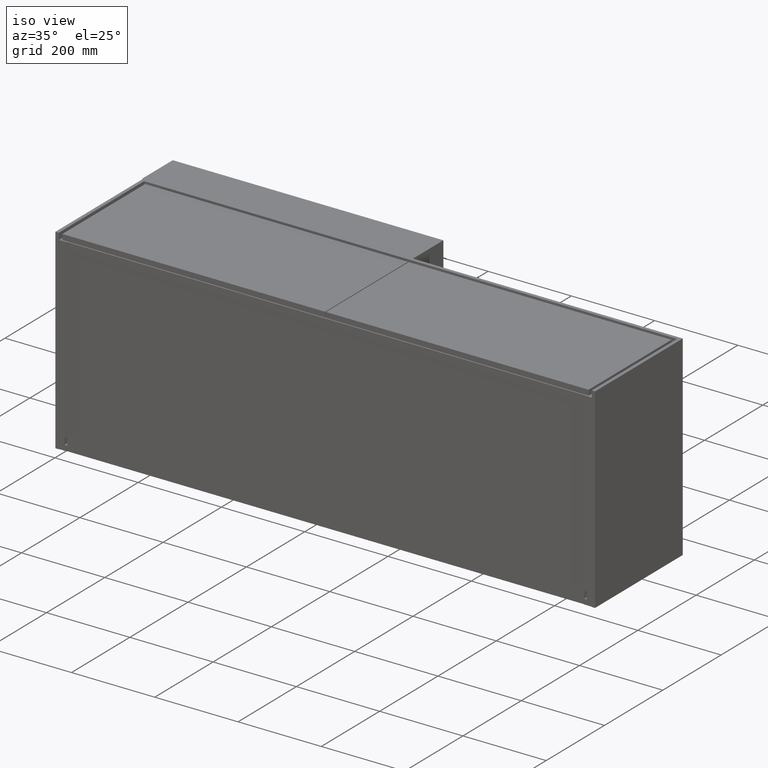
[diagram: clean part render]
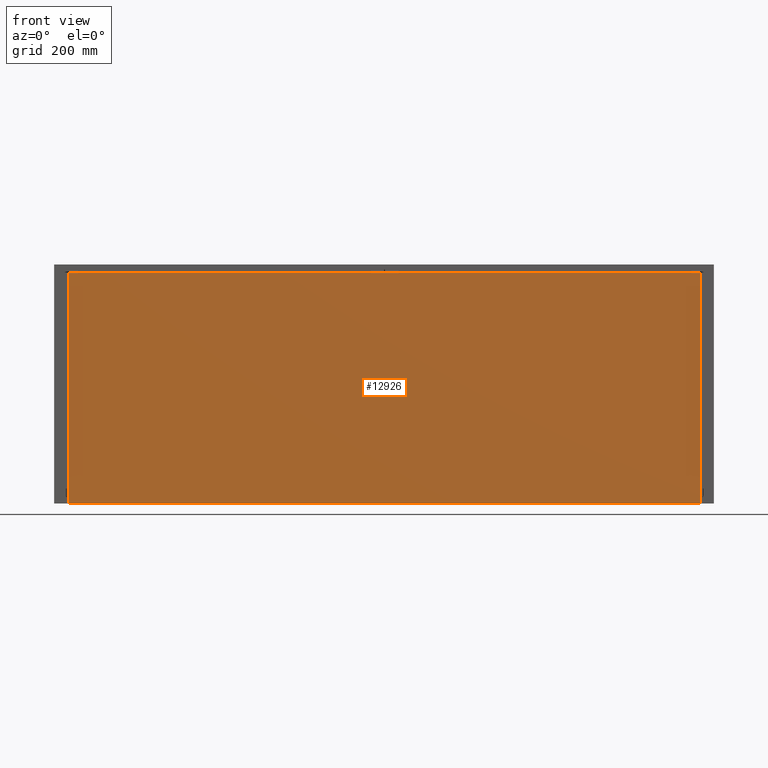
[diagram: tour spotlight — one face highlighted and labeled with its STEP entity id]
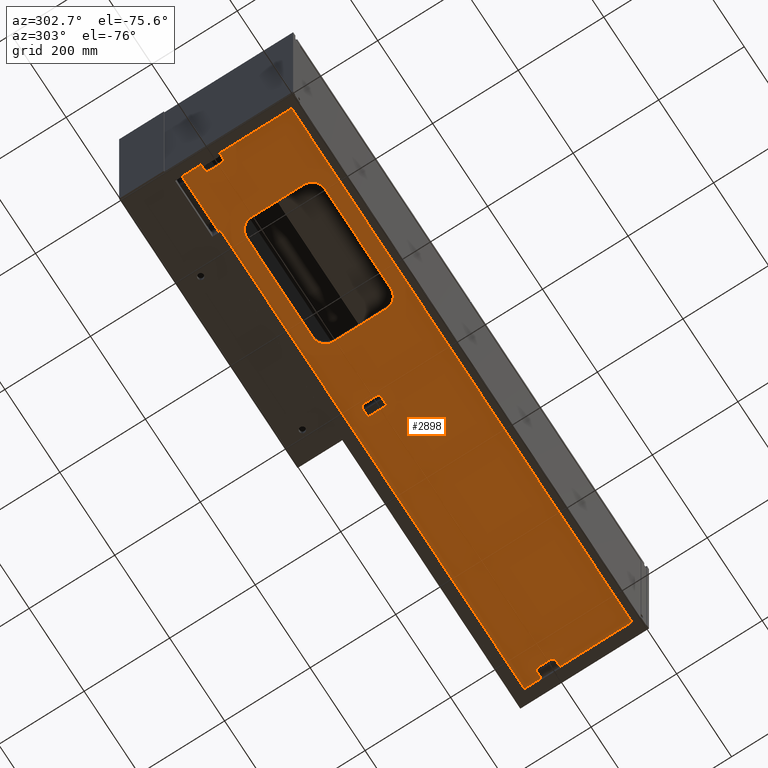
[diagram: tour spotlight — one face highlighted and labeled with its STEP entity id]
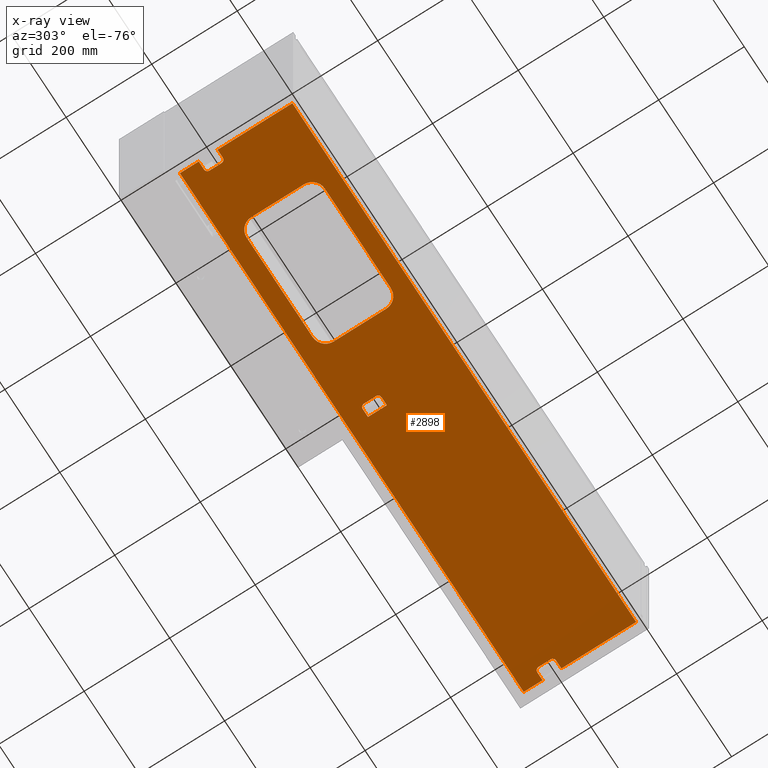
[diagram: x-ray of the same camera — body ghosted, this tour face saturated]
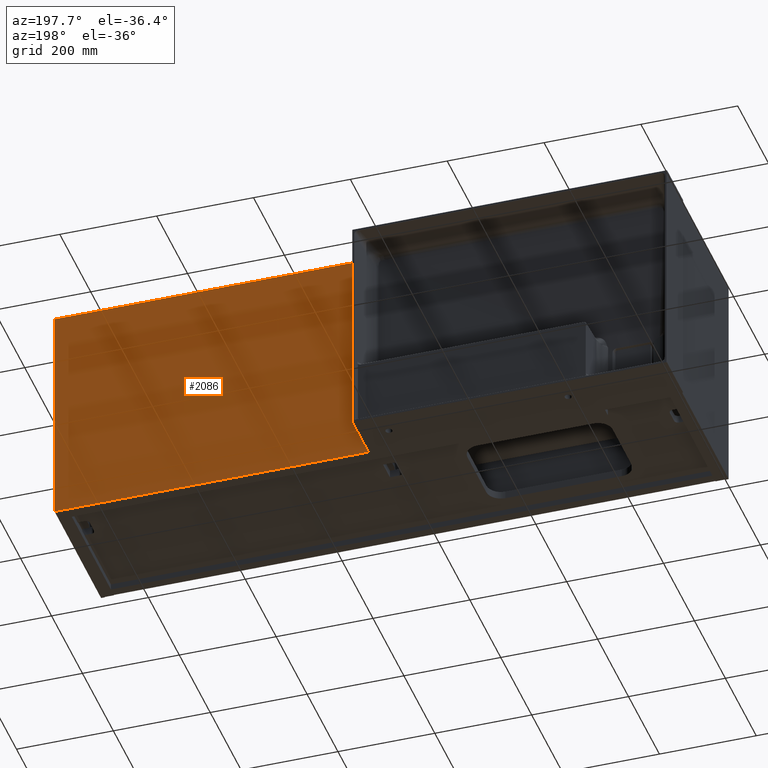
[diagram: tour spotlight — one face highlighted and labeled with its STEP entity id]
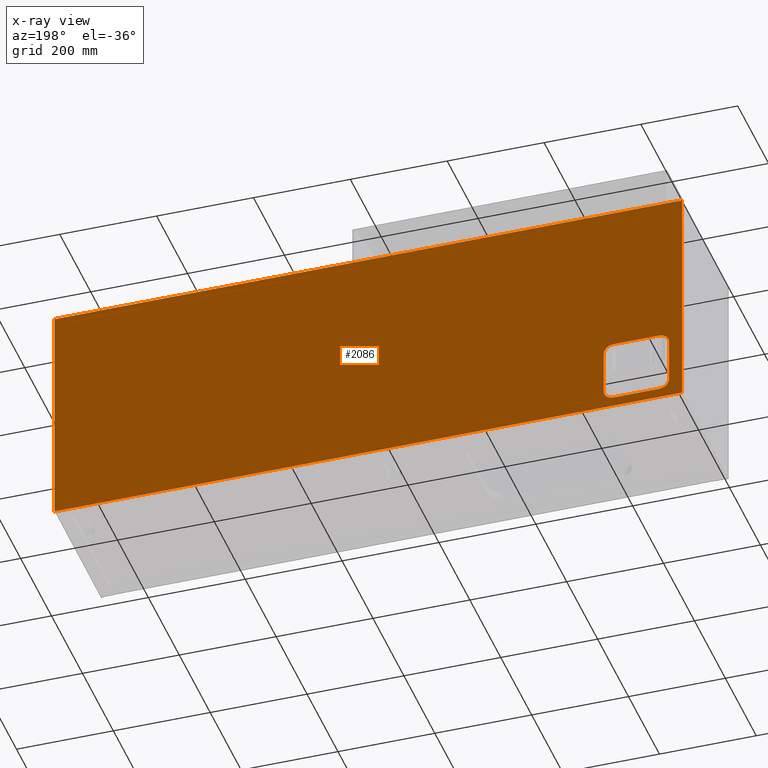
[diagram: x-ray of the same camera — body ghosted, this tour face saturated]
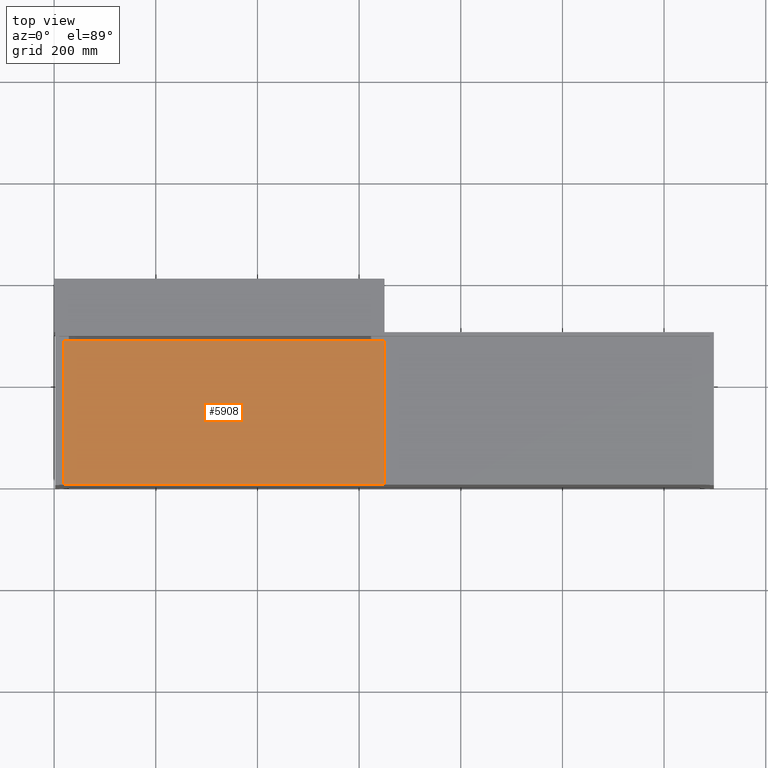
[diagram: tour spotlight — one face highlighted and labeled with its STEP entity id]
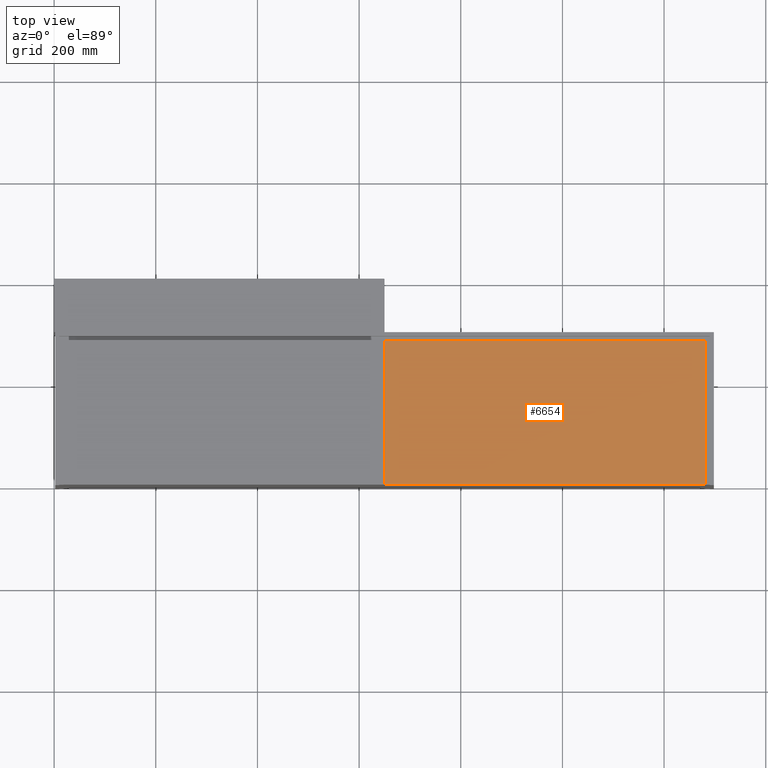
[diagram: tour spotlight — one face highlighted and labeled with its STEP entity id]
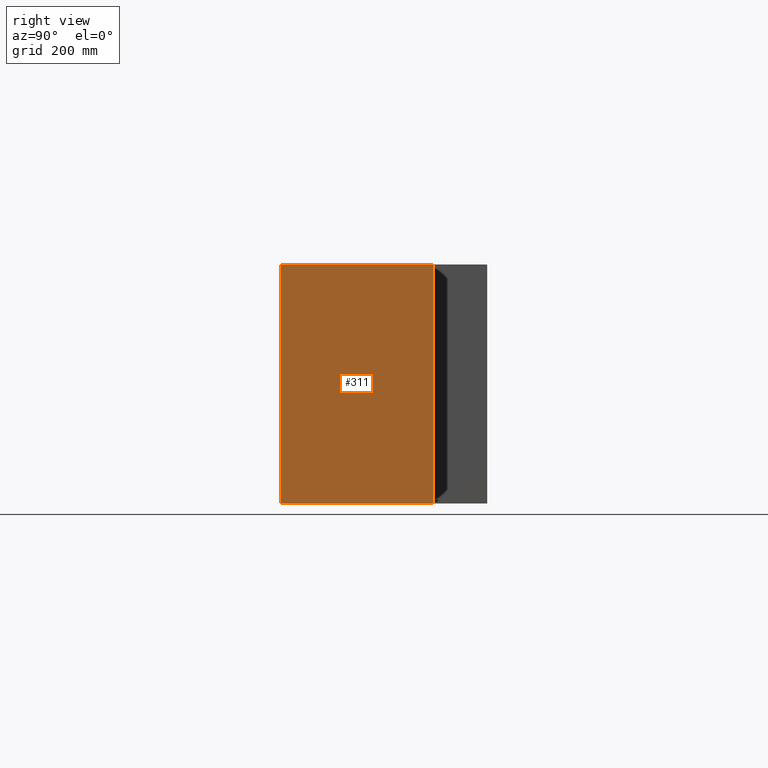
[diagram: tour spotlight — one face highlighted and labeled with its STEP entity id]
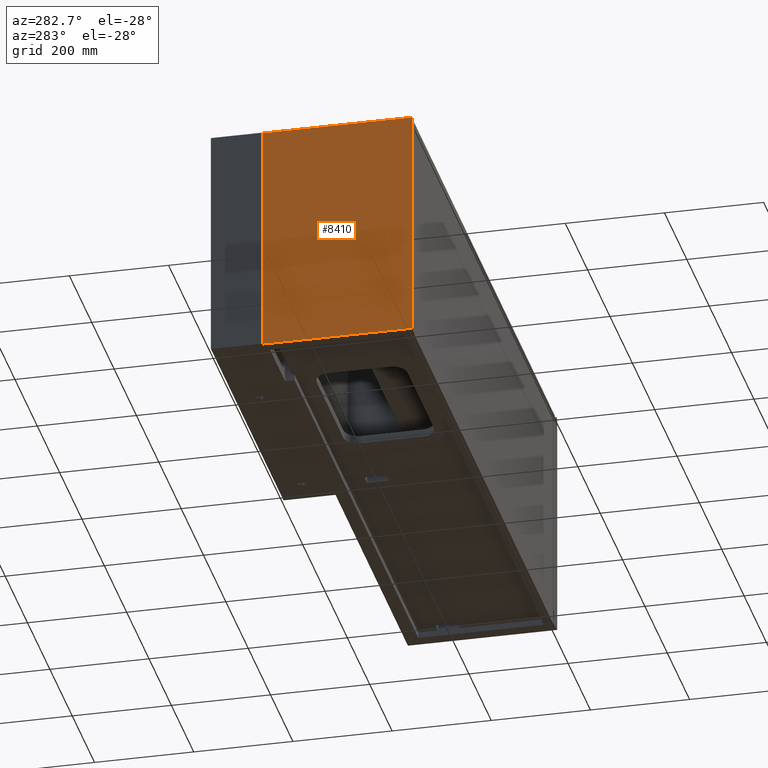
[diagram: tour spotlight — one face highlighted and labeled with its STEP entity id]
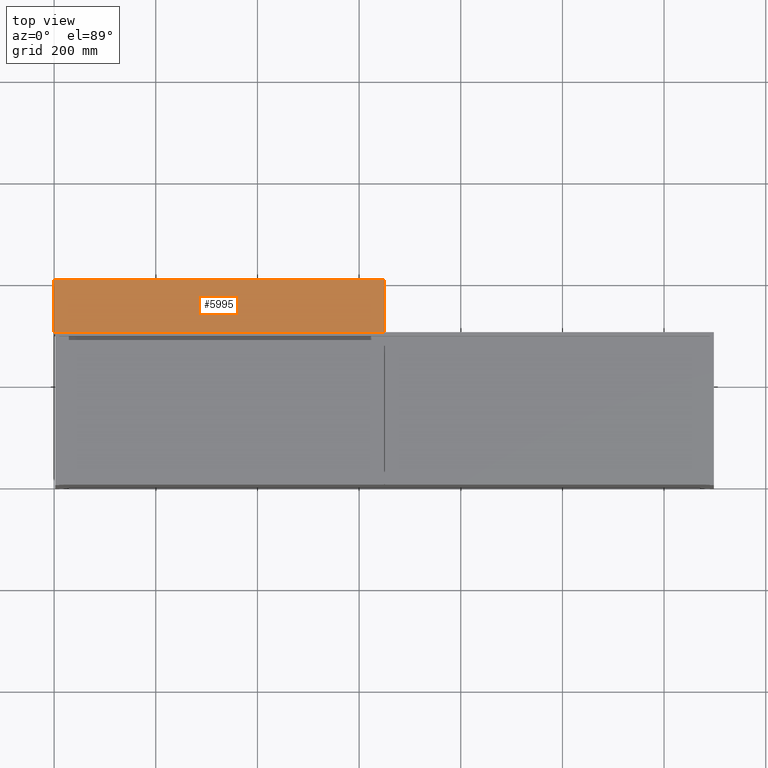
[diagram: tour spotlight — one face highlighted and labeled with its STEP entity id]
A machine part: a face-by-face anatomy tour. The part has 354 B-rep faces; the first image is the clean iso view, then the 8 largest visible faces are spotlighted one at a time (largest first), each with its STEP entity span.

Face 1 — front view, entity #12926. In plain terms, the highlighted planar face has unit normal (-0, 1, 0).
Definition (entity closure, byte-faithful):
#87 = LINE ( 'NONE', #5061, #14583 ) ;
#867 = CARTESIAN_POINT ( 'NONE',  ( 1271.000000000000455, 1.000000000000000000, -470.0000000000000000 ) ) ;
#874 = AXIS2_PLACEMENT_3D ( 'NONE', #1326, #6324, #11311 ) ;
#946 = LINE ( 'NONE', #5931, #4683 ) ;
#1326 = CARTESIAN_POINT ( 'NONE',  ( 0.0000000000000000000, 1.000000000000000000, 0.0000000000000000000 ) ) ;
#3457 = EDGE_CURVE ( 'NONE', #14538, #7035, #946, .T. ) ;
#3922 = DIRECTION ( 'NONE',  ( -0.0000000000000000000, -0.0000000000000000000, -1.000000000000000000 ) ) ;
#4104 = CARTESIAN_POINT ( 'NONE',  ( 28.99999999999999645, 1.000000000000000000, -16.00000000000000000 ) ) ;
#4683 = VECTOR ( 'NONE', #10915, 1000.000000000000000 ) ;
#4858 = CARTESIAN_POINT ( 'NONE',  ( 28.99999999999999645, 1.000000000000000000, -16.00000000000000000 ) ) ;
#5061 = CARTESIAN_POINT ( 'NONE',  ( 28.99999999999999645, 1.000000000000000000, -470.0000000000000000 ) ) ;
#5931 = CARTESIAN_POINT ( 'NONE',  ( 28.99999999999999645, 1.000000000000000000, -470.0000000000000000 ) ) ;
#6136 = EDGE_LOOP ( 'NONE', ( #7652, #13199, #13690, #15745 ) ) ;
#6324 = DIRECTION ( 'NONE',  ( -0.0000000000000000000, 1.000000000000000000, 0.0000000000000000000 ) ) ;
#6335 = EDGE_CURVE ( 'NONE', #7035, #13720, #87, .T. ) ;
#7035 = VERTEX_POINT ( 'NONE', #9374 ) ;
#7550 = FACE_OUTER_BOUND ( 'NONE', #6136, .T. ) ;
#7652 = ORIENTED_EDGE ( 'NONE', *, *, #6335, .F. ) ;
#7670 = VECTOR ( 'NONE', #9110, 1000.000000000000000 ) ;
#8630 = CARTESIAN_POINT ( 'NONE',  ( 1271.000000000000455, 1.000000000000000000, -16.00000000000001421 ) ) ;
#9110 = DIRECTION ( 'NONE',  ( 1.000000000000000000, 0.0000000000000000000, -1.117374219630793189E-17 ) ) ;
#9374 = CARTESIAN_POINT ( 'NONE',  ( 28.99999999999999645, 1.000000000000000000, -470.0000000000000000 ) ) ;
#10074 = DIRECTION ( 'NONE',  ( 0.0000000000000000000, 0.0000000000000000000, 1.000000000000000000 ) ) ;
#10152 = LINE ( 'NONE', #15104, #12347 ) ;
#10915 = DIRECTION ( 'NONE',  ( -1.000000000000000000, -0.0000000000000000000, -0.0000000000000000000 ) ) ;
#11022 = VERTEX_POINT ( 'NONE', #8630 ) ;
#11311 = DIRECTION ( 'NONE',  ( 0.0000000000000000000, -0.0000000000000000000, 1.000000000000000000 ) ) ;
#12321 = EDGE_CURVE ( 'NONE', #13720, #11022, #15288, .T. ) ;
#12347 = VECTOR ( 'NONE', #3922, 1000.000000000000000 ) ;
#12522 = PLANE ( 'NONE',  #874 ) ;
#12607 = EDGE_CURVE ( 'NONE', #11022, #14538, #10152, .T. ) ;
#12926 = ADVANCED_FACE ( 'NONE', ( #7550 ), #12522, .F. ) ;
#13199 = ORIENTED_EDGE ( 'NONE', *, *, #3457, .F. ) ;
#13690 = ORIENTED_EDGE ( 'NONE', *, *, #12607, .F. ) ;
#13720 = VERTEX_POINT ( 'NONE', #4858 ) ;
#14538 = VERTEX_POINT ( 'NONE', #867 ) ;
#14583 = VECTOR ( 'NONE', #10074, 1000.000000000000000 ) ;
#15104 = CARTESIAN_POINT ( 'NONE',  ( 1271.000000000000455, 1.000000000000000000, -470.0000000000000000 ) ) ;
#15288 = LINE ( 'NONE', #4104, #7670 ) ;
#15745 = ORIENTED_EDGE ( 'NONE', *, *, #12321, .F. ) ;

Face 2 — auxiliary view, entity #2898. An x-ray twin of the same camera follows (body ghosted, this face saturated) — the face is partly hidden behind the body. In plain terms, the highlighted planar face has unit normal (0, -0, 1).
Definition (entity closure, byte-faithful):
#7 = AXIS2_PLACEMENT_3D ( 'NONE', #10954, #15913, #4739 ) ;
#104 = CIRCLE ( 'NONE', #7141, 8.000000000000007105 ) ;
#196 = CARTESIAN_POINT ( 'NONE',  ( 1257.000000000000227, 234.0000000000000284, -456.5000000000005116 ) ) ;
#238 = EDGE_CURVE ( 'NONE', #11706, #16104, #6420, .T. ) ;
#291 = CARTESIAN_POINT ( 'NONE',  ( 1257.000000000000227, 198.0000000000000568, -456.5000000000005116 ) ) ;
#325 = VECTOR ( 'NONE', #11590, 1000.000000000000000 ) ;
#333 = EDGE_LOOP ( 'NONE', ( #1672, #1506, #7737, #13928, #14830, #2371 ) ) ;
#338 = VERTEX_POINT ( 'NONE', #2305 ) ;
#363 = VECTOR ( 'NONE', #4538, 1000.000000000000000 ) ;
#488 = VERTEX_POINT ( 'NONE', #7739 ) ;
#610 = DIRECTION ( 'NONE',  ( 0.0000000000000000000, -1.000000000000000000, 0.0000000000000000000 ) ) ;
#694 = DIRECTION ( 'NONE',  ( -1.000000000000000000, -0.0000000000000000000, 4.433798021665959670E-17 ) ) ;
#981 = FACE_OUTER_BOUND ( 'NONE', #16069, .T. ) ;
#1230 = CARTESIAN_POINT ( 'NONE',  ( 621.5000000000001137, 234.0000000000000000, -456.5000000000003979 ) ) ;
#1251 = EDGE_CURVE ( 'NONE', #11913, #7873, #16133, .T. ) ;
#1402 = VERTEX_POINT ( 'NONE', #15254 ) ;
#1461 = DIRECTION ( 'NONE',  ( -1.796477386124849124E-16, 0.0000000000000000000, -1.000000000000000000 ) ) ;
#1464 = CARTESIAN_POINT ( 'NONE',  ( 445.0000000000000568, 84.99999999999998579, -456.5000000000003411 ) ) ;
#1506 = ORIENTED_EDGE ( 'NONE', *, *, #3903, .F. ) ;
#1557 = CARTESIAN_POINT ( 'NONE',  ( 23.99999999999998934, 190.0000000000000568, -456.5000000000002842 ) ) ;
#1664 = CIRCLE ( 'NONE', #10805, 30.00000000000002842 ) ;
#1672 = ORIENTED_EDGE ( 'NONE', *, *, #11312, .F. ) ;
#1854 = EDGE_CURVE ( 'NONE', #4098, #15232, #14228, .T. ) ;
#1903 = CIRCLE ( 'NONE', #11051, 8.000000000000007105 ) ;
#1905 = LINE ( 'NONE', #6913, #14872 ) ;
#1942 = CIRCLE ( 'NONE', #11095, 8.000000000000014211 ) ;
#1970 = DIRECTION ( 'NONE',  ( -1.000000000000000000, 0.0000000000000000000, 0.0000000000000000000 ) ) ;
#2017 = CARTESIAN_POINT ( 'NONE',  ( 445.0000000000000568, 238.0000000000000000, -456.5000000000003411 ) ) ;
#2203 = EDGE_CURVE ( 'NONE', #7786, #14120, #4623, .T. ) ;
#2225 = EDGE_CURVE ( 'NONE', #4109, #7873, #4702, .T. ) ;
#2255 = CARTESIAN_POINT ( 'NONE',  ( 23.99999999999998934, 190.0000000000000568, -456.5000000000002842 ) ) ;
#2266 = LINE ( 'NONE', #7275, #3913 ) ;
#2279 = CARTESIAN_POINT ( 'NONE',  ( 205.0000000000000000, 55.00000000000002132, -456.5000000000003411 ) ) ;
#2305 = CARTESIAN_POINT ( 'NONE',  ( 42.99999999999990763, 190.0000000000000568, -456.5000000000002842 ) ) ;
#2371 = ORIENTED_EDGE ( 'NONE', *, *, #6428, .F. ) ;
#2374 = VERTEX_POINT ( 'NONE', #6277 ) ;
#2384 = CARTESIAN_POINT ( 'NONE',  ( 1257.000000000000227, 226.0000000000000284, -456.5000000000005116 ) ) ;
#2403 = VECTOR ( 'NONE', #694, 1000.000000000000000 ) ;
#2421 = LINE ( 'NONE', #7431, #9806 ) ;
#2431 = CARTESIAN_POINT ( 'NONE',  ( 1276.000000000000227, 234.0000000000000284, -456.5000000000005116 ) ) ;
#2478 = ORIENTED_EDGE ( 'NONE', *, *, #2225, .F. ) ;
#2623 = CARTESIAN_POINT ( 'NONE',  ( 1276.000000000000227, 15.00000000000000000, -456.5000000000003411 ) ) ;
#2652 = EDGE_CURVE ( 'NONE', #488, #4098, #104, .T. ) ;
#2759 = DIRECTION ( 'NONE',  ( -1.796477386124849124E-16, 0.0000000000000000000, -1.000000000000000000 ) ) ;
#2828 = LINE ( 'NONE', #6608, #325 ) ;
#2898 = ADVANCED_FACE ( 'NONE', ( #7200, #12167, #981 ), #5966, .F. ) ;
#2919 = EDGE_CURVE ( 'NONE', #15747, #9216, #2266, .T. ) ;
#2929 = ORIENTED_EDGE ( 'NONE', *, *, #11031, .F. ) ;
#2932 = ORIENTED_EDGE ( 'NONE', *, *, #12299, .F. ) ;
#2948 = ORIENTED_EDGE ( 'NONE', *, *, #10906, .F. ) ;
#3037 = ORIENTED_EDGE ( 'NONE', *, *, #12702, .F. ) ;
#3039 = CARTESIAN_POINT ( 'NONE',  ( 1249.000000000000227, 226.0000000000000284, -456.5000000000005116 ) ) ;
#3268 = LINE ( 'NONE', #8270, #10222 ) ;
#3308 = DIRECTION ( 'NONE',  ( -4.956352788505169184E-16, -1.000000000000000000, 0.0000000000000000000 ) ) ;
#3412 = CARTESIAN_POINT ( 'NONE',  ( 175.0000000000000568, 208.0000000000000568, -456.5000000000003411 ) ) ;
#3620 = CARTESIAN_POINT ( 'NONE',  ( 445.0000000000000568, 54.99999999999999289, -456.5000000000003411 ) ) ;
#3627 = DIRECTION ( 'NONE',  ( -1.000000000000000000, 0.0000000000000000000, 0.0000000000000000000 ) ) ;
#3678 = DIRECTION ( 'NONE',  ( -1.796477386124849124E-16, 0.0000000000000000000, -1.000000000000000000 ) ) ;
#3747 = VECTOR ( 'NONE', #14087, 1000.000000000000000 ) ;
#3789 = CARTESIAN_POINT ( 'NONE',  ( 1249.000000000000227, 226.0000000000000284, -456.5000000000005116 ) ) ;
#3903 = EDGE_CURVE ( 'NONE', #9216, #4663, #6832, .T. ) ;
#3913 = VECTOR ( 'NONE', #12241, 1000.000000000000000 ) ;
#4098 = VERTEX_POINT ( 'NONE', #13826 ) ;
#4109 = VERTEX_POINT ( 'NONE', #196 ) ;
#4133 = LINE ( 'NONE', #9136, #3747 ) ;
#4242 = CARTESIAN_POINT ( 'NONE',  ( 613.5000000000001137, 198.0000000000000000, -456.5000000000003979 ) ) ;
#4302 = DIRECTION ( 'NONE',  ( 4.513101726118521929E-16, -1.000000000000000000, 0.0000000000000000000 ) ) ;
#4538 = DIRECTION ( 'NONE',  ( -0.0000000000000000000, -1.000000000000000000, -0.0000000000000000000 ) ) ;
#4621 = CARTESIAN_POINT ( 'NONE',  ( 621.5000000000001137, 225.9999999999999716, -456.5000000000003979 ) ) ;
#4623 = LINE ( 'NONE', #8398, #6107 ) ;
#4663 = VERTEX_POINT ( 'NONE', #5367 ) ;
#4702 = LINE ( 'NONE', #9716, #11074 ) ;
#4739 = DIRECTION ( 'NONE',  ( 1.000000000000000000, 0.0000000000000000000, -4.433798021665959670E-17 ) ) ;
#4816 = EDGE_CURVE ( 'NONE', #2374, #11706, #1905, .T. ) ;
#4827 = ORIENTED_EDGE ( 'NONE', *, *, #10957, .T. ) ;
#4960 = CARTESIAN_POINT ( 'NONE',  ( 1276.000000000000227, 1531.102232247830216, -456.5000000000003411 ) ) ;
#5180 = LINE ( 'NONE', #10182, #14932 ) ;
#5248 = ORIENTED_EDGE ( 'NONE', *, *, #8324, .F. ) ;
#5267 = DIRECTION ( 'NONE',  ( -1.796477386124849124E-16, 0.0000000000000000000, -1.000000000000000000 ) ) ;
#5367 = CARTESIAN_POINT ( 'NONE',  ( 640.5000000000002274, 189.9999999999999432, -456.5000000000002842 ) ) ;
#5375 = CARTESIAN_POINT ( 'NONE',  ( 42.99999999999990763, 226.0000000000000284, -456.5000000000002842 ) ) ;
#5574 = VECTOR ( 'NONE', #6566, 1000.000000000000000 ) ;
#5651 = CARTESIAN_POINT ( 'NONE',  ( 174.9999999999999716, 84.99999999999997158, -456.5000000000002842 ) ) ;
#5742 = VECTOR ( 'NONE', #610, 1000.000000000000000 ) ;
#5743 = CARTESIAN_POINT ( 'NONE',  ( 205.0000000000000568, 208.0000000000000568, -456.5000000000003411 ) ) ;
#5855 = LINE ( 'NONE', #10840, #15980 ) ;
#5866 = VERTEX_POINT ( 'NONE', #2623 ) ;
#5966 = PLANE ( 'NONE',  #7 ) ;
#6033 = AXIS2_PLACEMENT_3D ( 'NONE', #5743, #10730, #15693 ) ;
#6107 = VECTOR ( 'NONE', #13358, 1000.000000000000000 ) ;
#6118 = VERTEX_POINT ( 'NONE', #8345 ) ;
#6277 = CARTESIAN_POINT ( 'NONE',  ( 23.99999999999999645, 234.0000000000000000, -456.5000000000002842 ) ) ;
#6420 = CIRCLE ( 'NONE', #13436, 8.000000000000007105 ) ;
#6428 = EDGE_CURVE ( 'NONE', #6935, #15798, #15881, .T. ) ;
#6464 = DIRECTION ( 'NONE',  ( -1.000000000000000000, 0.0000000000000000000, 0.0000000000000000000 ) ) ;
#6467 = DIRECTION ( 'NONE',  ( -1.796477386124849124E-16, 0.0000000000000000000, -1.000000000000000000 ) ) ;
#6566 = DIRECTION ( 'NONE',  ( -1.000000000000000000, 1.460819769243633442E-15, -0.0000000000000000000 ) ) ;
#6608 = CARTESIAN_POINT ( 'NONE',  ( 23.99999999999999645, 278.0000000000000000, -456.5000000000002842 ) ) ;
#6664 = AXIS2_PLACEMENT_3D ( 'NONE', #9874, #14819, #3627 ) ;
#6760 = LINE ( 'NONE', #15477, #14406 ) ;
#6832 = LINE ( 'NONE', #11805, #5742 ) ;
#6913 = CARTESIAN_POINT ( 'NONE',  ( 23.99999999999999645, 234.0000000000000284, -456.5000000000002842 ) ) ;
#6918 = LINE ( 'NONE', #11887, #2403 ) ;
#6935 = VERTEX_POINT ( 'NONE', #10424 ) ;
#7141 = AXIS2_PLACEMENT_3D ( 'NONE', #291, #5267, #10275 ) ;
#7200 = FACE_BOUND ( 'NONE', #333, .T. ) ;
#7275 = CARTESIAN_POINT ( 'NONE',  ( 640.5000000000002274, 234.0000000000000000, -456.5000000000003979 ) ) ;
#7295 = VERTEX_POINT ( 'NONE', #9836 ) ;
#7431 = CARTESIAN_POINT ( 'NONE',  ( 23.99999999999999645, 1531.102232247830216, -456.5000000000002842 ) ) ;
#7440 = CARTESIAN_POINT ( 'NONE',  ( 205.0000000000000568, 238.0000000000000568, -456.5000000000003411 ) ) ;
#7471 = VERTEX_POINT ( 'NONE', #2017 ) ;
#7722 = ORIENTED_EDGE ( 'NONE', *, *, #13738, .F. ) ;
#7737 = ORIENTED_EDGE ( 'NONE', *, *, #2919, .F. ) ;
#7739 = CARTESIAN_POINT ( 'NONE',  ( 1257.000000000000227, 190.0000000000000568, -456.5000000000005116 ) ) ;
#7768 = DIRECTION ( 'NONE',  ( 1.000000000000000000, 0.0000000000000000000, 0.0000000000000000000 ) ) ;
#7786 = VERTEX_POINT ( 'NONE', #5651 ) ;
#7809 = EDGE_CURVE ( 'NONE', #11171, #488, #3268, .T. ) ;
#7873 = VERTEX_POINT ( 'NONE', #2431 ) ;
#8050 = DIRECTION ( 'NONE',  ( -0.0000000000000000000, 1.000000000000000000, -0.0000000000000000000 ) ) ;
#8107 = ORIENTED_EDGE ( 'NONE', *, *, #13088, .F. ) ;
#8149 = EDGE_CURVE ( 'NONE', #8939, #8482, #14811, .T. ) ;
#8206 = LINE ( 'NONE', #13176, #9237 ) ;
#8270 = CARTESIAN_POINT ( 'NONE',  ( 1276.000000000000227, 190.0000000000000568, -456.5000000000005116 ) ) ;
#8324 = EDGE_CURVE ( 'NONE', #14120, #11378, #13072, .T. ) ;
#8336 = ORIENTED_EDGE ( 'NONE', *, *, #4816, .F. ) ;
#8345 = CARTESIAN_POINT ( 'NONE',  ( 23.99999999999999645, 278.0000000000000000, -456.5000000000002842 ) ) ;
#8398 = CARTESIAN_POINT ( 'NONE',  ( 175.0000000000000853, 208.0000000000000568, -456.5000000000003411 ) ) ;
#8482 = VERTEX_POINT ( 'NONE', #2279 ) ;
#8502 = EDGE_LOOP ( 'NONE', ( #14353, #16050, #11703, #8107, #2948, #7722, #8663, #5248 ) ) ;
#8631 = DIRECTION ( 'NONE',  ( -1.000000000000000000, 1.156482317317870985E-16, 0.0000000000000000000 ) ) ;
#8663 = ORIENTED_EDGE ( 'NONE', *, *, #11137, .F. ) ;
#8689 = DIRECTION ( 'NONE',  ( -1.000000000000000000, 0.0000000000000000000, 0.0000000000000000000 ) ) ;
#8700 = AXIS2_PLACEMENT_3D ( 'NONE', #2384, #11158, #16105 ) ;
#8718 = ORIENTED_EDGE ( 'NONE', *, *, #7809, .F. ) ;
#8900 = AXIS2_PLACEMENT_3D ( 'NONE', #12662, #1461, #6464 ) ;
#8939 = VERTEX_POINT ( 'NONE', #13463 ) ;
#8993 = CARTESIAN_POINT ( 'NONE',  ( 640.5000000000002274, 234.0000000000000000, -456.5000000000003979 ) ) ;
#9030 = VECTOR ( 'NONE', #9972, 1000.000000000000000 ) ;
#9037 = LINE ( 'NONE', #1557, #5574 ) ;
#9136 = CARTESIAN_POINT ( 'NONE',  ( 613.5000000000001137, 225.9999999999999716, -456.5000000000003979 ) ) ;
#9216 = VERTEX_POINT ( 'NONE', #8993 ) ;
#9237 = VECTOR ( 'NONE', #1970, 1000.000000000000000 ) ;
#9508 = VECTOR ( 'NONE', #3308, 1000.000000000000000 ) ;
#9515 = ORIENTED_EDGE ( 'NONE', *, *, #2652, .F. ) ;
#9551 = LINE ( 'NONE', #14490, #9508 ) ;
#9635 = DIRECTION ( 'NONE',  ( -1.796477386124849124E-16, 0.0000000000000000000, -1.000000000000000000 ) ) ;
#9716 = CARTESIAN_POINT ( 'NONE',  ( 1276.000000000000227, 234.0000000000000284, -456.5000000000005116 ) ) ;
#9806 = VECTOR ( 'NONE', #12402, 1000.000000000000000 ) ;
#9836 = CARTESIAN_POINT ( 'NONE',  ( 23.99999999999999645, 15.00000000000000000, -456.5000000000002842 ) ) ;
#9874 = CARTESIAN_POINT ( 'NONE',  ( 445.0000000000000568, 208.0000000000000284, -456.5000000000003411 ) ) ;
#9972 = DIRECTION ( 'NONE',  ( -0.0000000000000000000, -1.000000000000000000, -0.0000000000000000000 ) ) ;
#10053 = EDGE_CURVE ( 'NONE', #11913, #6118, #2828, .T. ) ;
#10060 = VECTOR ( 'NONE', #8050, 1000.000000000000000 ) ;
#10182 = CARTESIAN_POINT ( 'NONE',  ( 445.0000000000000568, 238.0000000000000284, -456.5000000000003411 ) ) ;
#10222 = VECTOR ( 'NONE', #13232, 1000.000000000000000 ) ;
#10275 = DIRECTION ( 'NONE',  ( -1.000000000000000000, 0.0000000000000000000, 0.0000000000000000000 ) ) ;
#10375 = DIRECTION ( 'NONE',  ( -1.796477386124849124E-16, 0.0000000000000000000, -1.000000000000000000 ) ) ;
#10424 = CARTESIAN_POINT ( 'NONE',  ( 621.5000000000001137, 190.0000000000000000, -456.5000000000003979 ) ) ;
#10563 = CIRCLE ( 'NONE', #12628, 30.00000000000002842 ) ;
#10730 = DIRECTION ( 'NONE',  ( -1.796477386124849124E-16, 0.0000000000000000000, -1.000000000000000000 ) ) ;
#10752 = LINE ( 'NONE', #15716, #363 ) ;
#10805 = AXIS2_PLACEMENT_3D ( 'NONE', #14866, #3678, #8689 ) ;
#10840 = CARTESIAN_POINT ( 'NONE',  ( 23.99999999999999645, 1531.102232247830216, -456.5000000000002842 ) ) ;
#10906 = EDGE_CURVE ( 'NONE', #11394, #11210, #6760, .T. ) ;
#10954 = CARTESIAN_POINT ( 'NONE',  ( 23.99999999999999645, 1531.102232247830216, -456.5000000000002842 ) ) ;
#10957 = EDGE_CURVE ( 'NONE', #5866, #7295, #6918, .T. ) ;
#11031 = EDGE_CURVE ( 'NONE', #15232, #4109, #15708, .T. ) ;
#11051 = AXIS2_PLACEMENT_3D ( 'NONE', #4621, #9635, #14571 ) ;
#11074 = VECTOR ( 'NONE', #14657, 1000.000000000000000 ) ;
#11095 = AXIS2_PLACEMENT_3D ( 'NONE', #13954, #2759, #7768 ) ;
#11137 = EDGE_CURVE ( 'NONE', #11378, #7471, #5180, .T. ) ;
#11158 = DIRECTION ( 'NONE',  ( -1.796477386124849124E-16, 0.0000000000000000000, -1.000000000000000000 ) ) ;
#11171 = VERTEX_POINT ( 'NONE', #15219 ) ;
#11210 = VERTEX_POINT ( 'NONE', #11563 ) ;
#11312 = EDGE_CURVE ( 'NONE', #4663, #6935, #8206, .T. ) ;
#11378 = VERTEX_POINT ( 'NONE', #7440 ) ;
#11394 = VERTEX_POINT ( 'NONE', #12411 ) ;
#11452 = DIRECTION ( 'NONE',  ( 1.000000000000000000, 0.0000000000000000000, 0.0000000000000000000 ) ) ;
#11563 = CARTESIAN_POINT ( 'NONE',  ( 475.0000000000001137, 84.99999999999998579, -456.5000000000003411 ) ) ;
#11590 = DIRECTION ( 'NONE',  ( -1.000000000000000000, 0.0000000000000000000, 4.433798021665959670E-17 ) ) ;
#11703 = ORIENTED_EDGE ( 'NONE', *, *, #8149, .F. ) ;
#11706 = VERTEX_POINT ( 'NONE', #15733 ) ;
#11805 = CARTESIAN_POINT ( 'NONE',  ( 640.5000000000002274, 234.0000000000000000, -456.5000000000003979 ) ) ;
#11884 = DIRECTION ( 'NONE',  ( 1.000000000000000000, 0.0000000000000000000, 0.0000000000000000000 ) ) ;
#11887 = CARTESIAN_POINT ( 'NONE',  ( 23.99999999999999645, 15.00000000000000000, -456.5000000000002842 ) ) ;
#11913 = VERTEX_POINT ( 'NONE', #11960 ) ;
#11960 = CARTESIAN_POINT ( 'NONE',  ( 1276.000000000000227, 278.0000000000000000, -456.5000000000003411 ) ) ;
#12134 = ORIENTED_EDGE ( 'NONE', *, *, #14291, .F. ) ;
#12146 = ORIENTED_EDGE ( 'NONE', *, *, #14213, .F. ) ;
#12167 = FACE_BOUND ( 'NONE', #8502, .T. ) ;
#12241 = DIRECTION ( 'NONE',  ( 1.000000000000000000, -0.0000000000000000000, -0.0000000000000000000 ) ) ;
#12299 = EDGE_CURVE ( 'NONE', #338, #15898, #9037, .T. ) ;
#12402 = DIRECTION ( 'NONE',  ( -0.0000000000000000000, -1.000000000000000000, -0.0000000000000000000 ) ) ;
#12411 = CARTESIAN_POINT ( 'NONE',  ( 475.0000000000000568, 208.0000000000000284, -456.5000000000003979 ) ) ;
#12628 = AXIS2_PLACEMENT_3D ( 'NONE', #1464, #6467, #11452 ) ;
#12653 = ORIENTED_EDGE ( 'NONE', *, *, #1854, .F. ) ;
#12662 = CARTESIAN_POINT ( 'NONE',  ( 621.5000000000001137, 198.0000000000000000, -456.5000000000003979 ) ) ;
#12694 = EDGE_CURVE ( 'NONE', #11171, #5866, #10752, .T. ) ;
#12702 = EDGE_CURVE ( 'NONE', #16104, #13907, #9551, .T. ) ;
#13012 = ORIENTED_EDGE ( 'NONE', *, *, #10053, .F. ) ;
#13072 = CIRCLE ( 'NONE', #6033, 30.00000000000000000 ) ;
#13088 = EDGE_CURVE ( 'NONE', #11210, #8939, #10563, .T. ) ;
#13176 = CARTESIAN_POINT ( 'NONE',  ( 640.5000000000002274, 190.0000000000000000, -456.5000000000003979 ) ) ;
#13232 = DIRECTION ( 'NONE',  ( -1.000000000000000000, 0.0000000000000000000, 0.0000000000000000000 ) ) ;
#13358 = DIRECTION ( 'NONE',  ( 9.026203452237043858E-16, 1.000000000000000000, -0.0000000000000000000 ) ) ;
#13436 = AXIS2_PLACEMENT_3D ( 'NONE', #5375, #10375, #15326 ) ;
#13463 = CARTESIAN_POINT ( 'NONE',  ( 445.0000000000000568, 54.99999999999999289, -456.5000000000003411 ) ) ;
#13678 = CIRCLE ( 'NONE', #6664, 29.99999999999997158 ) ;
#13738 = EDGE_CURVE ( 'NONE', #7471, #11394, #13678, .T. ) ;
#13826 = CARTESIAN_POINT ( 'NONE',  ( 1249.000000000000227, 198.0000000000000568, -456.5000000000005116 ) ) ;
#13907 = VERTEX_POINT ( 'NONE', #14003 ) ;
#13928 = ORIENTED_EDGE ( 'NONE', *, *, #14578, .F. ) ;
#13954 = CARTESIAN_POINT ( 'NONE',  ( 42.99999999999990763, 198.0000000000000568, -456.5000000000002842 ) ) ;
#14003 = CARTESIAN_POINT ( 'NONE',  ( 50.99999999999990052, 198.0000000000000568, -456.5000000000002842 ) ) ;
#14051 = ORIENTED_EDGE ( 'NONE', *, *, #12694, .T. ) ;
#14087 = DIRECTION ( 'NONE',  ( -0.0000000000000000000, 1.000000000000000000, -0.0000000000000000000 ) ) ;
#14120 = VERTEX_POINT ( 'NONE', #3412 ) ;
#14213 = EDGE_CURVE ( 'NONE', #6118, #2374, #2421, .T. ) ;
#14228 = LINE ( 'NONE', #3039, #10060 ) ;
#14291 = EDGE_CURVE ( 'NONE', #13907, #338, #1942, .T. ) ;
#14353 = ORIENTED_EDGE ( 'NONE', *, *, #2203, .F. ) ;
#14406 = VECTOR ( 'NONE', #4302, 1000.000000000000000 ) ;
#14490 = CARTESIAN_POINT ( 'NONE',  ( 50.99999999999991473, 226.0000000000000284, -456.5000000000002842 ) ) ;
#14561 = EDGE_CURVE ( 'NONE', #15898, #7295, #5855, .T. ) ;
#14571 = DIRECTION ( 'NONE',  ( 1.000000000000000000, 0.0000000000000000000, 0.0000000000000000000 ) ) ;
#14578 = EDGE_CURVE ( 'NONE', #1402, #15747, #1903, .T. ) ;
#14622 = VECTOR ( 'NONE', #8631, 1000.000000000000000 ) ;
#14657 = DIRECTION ( 'NONE',  ( 1.000000000000000000, -0.0000000000000000000, -0.0000000000000000000 ) ) ;
#14811 = LINE ( 'NONE', #3620, #14622 ) ;
#14819 = DIRECTION ( 'NONE',  ( -1.796477386124849124E-16, 0.0000000000000000000, -1.000000000000000000 ) ) ;
#14830 = ORIENTED_EDGE ( 'NONE', *, *, #14891, .F. ) ;
#14866 = CARTESIAN_POINT ( 'NONE',  ( 205.0000000000000284, 85.00000000000001421, -456.5000000000003411 ) ) ;
#14872 = VECTOR ( 'NONE', #11884, 1000.000000000000000 ) ;
#14890 = CARTESIAN_POINT ( 'NONE',  ( 50.99999999999991473, 226.0000000000000284, -456.5000000000002842 ) ) ;
#14891 = EDGE_CURVE ( 'NONE', #15798, #1402, #4133, .T. ) ;
#14932 = VECTOR ( 'NONE', #15141, 1000.000000000000000 ) ;
#15130 = ORIENTED_EDGE ( 'NONE', *, *, #1251, .T. ) ;
#15141 = DIRECTION ( 'NONE',  ( 1.000000000000000000, -1.156482317317871478E-16, -0.0000000000000000000 ) ) ;
#15219 = CARTESIAN_POINT ( 'NONE',  ( 1276.000000000000227, 190.0000000000001705, -456.5000000000003411 ) ) ;
#15232 = VERTEX_POINT ( 'NONE', #3789 ) ;
#15254 = CARTESIAN_POINT ( 'NONE',  ( 613.5000000000001137, 225.9999999999999716, -456.5000000000003979 ) ) ;
#15326 = DIRECTION ( 'NONE',  ( -1.000000000000000000, 0.0000000000000000000, 0.0000000000000000000 ) ) ;
#15444 = ORIENTED_EDGE ( 'NONE', *, *, #238, .F. ) ;
#15477 = CARTESIAN_POINT ( 'NONE',  ( 475.0000000000000568, 208.0000000000000284, -456.5000000000003979 ) ) ;
#15693 = DIRECTION ( 'NONE',  ( -1.000000000000000000, 0.0000000000000000000, 0.0000000000000000000 ) ) ;
#15708 = CIRCLE ( 'NONE', #8700, 8.000000000000007105 ) ;
#15709 = EDGE_CURVE ( 'NONE', #8482, #7786, #1664, .T. ) ;
#15716 = CARTESIAN_POINT ( 'NONE',  ( 1276.000000000000227, 1531.102232247830216, -456.5000000000003411 ) ) ;
#15733 = CARTESIAN_POINT ( 'NONE',  ( 42.99999999999990763, 234.0000000000000284, -456.5000000000002842 ) ) ;
#15747 = VERTEX_POINT ( 'NONE', #1230 ) ;
#15798 = VERTEX_POINT ( 'NONE', #4242 ) ;
#15807 = DIRECTION ( 'NONE',  ( -0.0000000000000000000, -1.000000000000000000, -0.0000000000000000000 ) ) ;
#15881 = CIRCLE ( 'NONE', #8900, 8.000000000000007105 ) ;
#15898 = VERTEX_POINT ( 'NONE', #2255 ) ;
#15913 = DIRECTION ( 'NONE',  ( 4.433798021665959670E-17, -0.0000000000000000000, 1.000000000000000000 ) ) ;
#15980 = VECTOR ( 'NONE', #15807, 1000.000000000000000 ) ;
#16028 = ORIENTED_EDGE ( 'NONE', *, *, #14561, .F. ) ;
#16050 = ORIENTED_EDGE ( 'NONE', *, *, #15709, .F. ) ;
#16069 = EDGE_LOOP ( 'NONE', ( #15130, #2478, #2929, #12653, #9515, #8718, #14051, #4827, #16028, #2932, #12134, #3037, #15444, #8336, #12146, #13012 ) ) ;
#16104 = VERTEX_POINT ( 'NONE', #14890 ) ;
#16105 = DIRECTION ( 'NONE',  ( 1.000000000000000000, 0.0000000000000000000, 0.0000000000000000000 ) ) ;
#16133 = LINE ( 'NONE', #4960, #9030 ) ;

Face 3 — auxiliary view, entity #2086. An x-ray twin of the same camera follows (body ghosted, this face saturated) — the face is partly hidden behind the body. In plain terms, the highlighted planar face has unit normal (0, 1, 0).
Definition (entity closure, byte-faithful):
#101 = VERTEX_POINT ( 'NONE', #1114 ) ;
#350 = AXIS2_PLACEMENT_3D ( 'NONE', #4068, #9073, #14019 ) ;
#402 = FACE_OUTER_BOUND ( 'NONE', #5437, .T. ) ;
#471 = DIRECTION ( 'NONE',  ( 0.0000000000000000000, 0.0000000000000000000, 1.000000000000000000 ) ) ;
#1114 = CARTESIAN_POINT ( 'NONE',  ( 2.000000000000053735, 300.0000000000000000, 0.0000000000000000000 ) ) ;
#1148 = ORIENTED_EDGE ( 'NONE', *, *, #11814, .F. ) ;
#1498 = CARTESIAN_POINT ( 'NONE',  ( 49.00000000000009948, 300.0000000000000000, -450.0000000000037517 ) ) ;
#1813 = VECTOR ( 'NONE', #13514, 1000.000000000000000 ) ;
#1827 = VERTEX_POINT ( 'NONE', #2789 ) ;
#2059 = AXIS2_PLACEMENT_3D ( 'NONE', #9587, #14523, #3340 ) ;
#2086 = ADVANCED_FACE ( 'NONE', ( #11596, #402 ), #5384, .T. ) ;
#2147 = CARTESIAN_POINT ( 'NONE',  ( 29.00000000000008171, 300.0000000000000000, -430.0000000000036948 ) ) ;
#2340 = VECTOR ( 'NONE', #15891, 1000.000000000000000 ) ;
#2386 = VECTOR ( 'NONE', #471, 1000.000000000000000 ) ;
#2452 = AXIS2_PLACEMENT_3D ( 'NONE', #10383, #15334, #4155 ) ;
#2684 = DIRECTION ( 'NONE',  ( 0.0000000000000000000, 0.0000000000000000000, 1.000000000000000000 ) ) ;
#2789 = CARTESIAN_POINT ( 'NONE',  ( 1298.000000000000227, 300.0000000000000000, -470.0000000000000000 ) ) ;
#3097 = ORIENTED_EDGE ( 'NONE', *, *, #10127, .T. ) ;
#3140 = CIRCLE ( 'NONE', #12255, 20.00000000000001776 ) ;
#3340 = DIRECTION ( 'NONE',  ( 0.0000000000000000000, 0.0000000000000000000, 1.000000000000000000 ) ) ;
#3468 = VECTOR ( 'NONE', #15203, 1000.000000000000000 ) ;
#3524 = VERTEX_POINT ( 'NONE', #14744 ) ;
#3527 = EDGE_CURVE ( 'NONE', #11493, #1827, #3557, .T. ) ;
#3545 = CARTESIAN_POINT ( 'NONE',  ( 164.0000000000001137, 300.0000000000000000, -430.0000000000036948 ) ) ;
#3557 = LINE ( 'NONE', #8558, #1813 ) ;
#3727 = CARTESIAN_POINT ( 'NONE',  ( 49.00000000000009948, 300.0000000000000000, -320.0000000000036380 ) ) ;
#3880 = ORIENTED_EDGE ( 'NONE', *, *, #4611, .F. ) ;
#4068 = CARTESIAN_POINT ( 'NONE',  ( 144.0000000000001137, 300.0000000000000000, -340.0000000000037517 ) ) ;
#4155 = DIRECTION ( 'NONE',  ( 0.0000000000000000000, -0.0000000000000000000, 1.000000000000000000 ) ) ;
#4260 = CARTESIAN_POINT ( 'NONE',  ( 49.00000000000009948, 300.0000000000000000, -320.0000000000037517 ) ) ;
#4468 = CARTESIAN_POINT ( 'NONE',  ( 144.0000000000001137, 300.0000000000000000, -430.0000000000036948 ) ) ;
#4611 = EDGE_CURVE ( 'NONE', #5726, #10737, #3140, .T. ) ;
#4863 = ORIENTED_EDGE ( 'NONE', *, *, #7742, .F. ) ;
#4893 = DIRECTION ( 'NONE',  ( -0.0000000000000000000, -0.0000000000000000000, -1.000000000000000000 ) ) ;
#5196 = CARTESIAN_POINT ( 'NONE',  ( 49.00000000000009948, 300.0000000000000000, -340.0000000000037517 ) ) ;
#5246 = LINE ( 'NONE', #10251, #3468 ) ;
#5318 = VECTOR ( 'NONE', #2684, 1000.000000000000000 ) ;
#5384 = PLANE ( 'NONE',  #2452 ) ;
#5437 = EDGE_LOOP ( 'NONE', ( #9519, #3097, #8004, #8432 ) ) ;
#5608 = EDGE_CURVE ( 'NONE', #7485, #3524, #12700, .T. ) ;
#5726 = VERTEX_POINT ( 'NONE', #12349 ) ;
#5948 = LINE ( 'NONE', #10933, #2340 ) ;
#6079 = CARTESIAN_POINT ( 'NONE',  ( 1298.000000000000227, 300.0000000000000000, 0.0000000000000000000 ) ) ;
#6117 = EDGE_CURVE ( 'NONE', #3524, #12732, #9154, .T. ) ;
#6287 = VECTOR ( 'NONE', #9269, 1000.000000000000000 ) ;
#6500 = DIRECTION ( 'NONE',  ( -1.000000000000000000, -0.0000000000000000000, -0.0000000000000000000 ) ) ;
#6565 = EDGE_LOOP ( 'NONE', ( #3880, #15841, #7781, #15906, #10646, #7002, #1148, #4863 ) ) ;
#6699 = LINE ( 'NONE', #11673, #2386 ) ;
#7002 = ORIENTED_EDGE ( 'NONE', *, *, #7314, .F. ) ;
#7017 = CARTESIAN_POINT ( 'NONE',  ( 144.0000000000001137, 300.0000000000000000, -450.0000000000037517 ) ) ;
#7314 = EDGE_CURVE ( 'NONE', #12373, #10992, #11126, .T. ) ;
#7393 = CIRCLE ( 'NONE', #350, 20.00000000000001776 ) ;
#7443 = CIRCLE ( 'NONE', #9546, 20.00000000000001776 ) ;
#7485 = VERTEX_POINT ( 'NONE', #7017 ) ;
#7555 = EDGE_CURVE ( 'NONE', #12732, #5726, #5948, .T. ) ;
#7742 = EDGE_CURVE ( 'NONE', #10737, #10393, #15434, .T. ) ;
#7781 = ORIENTED_EDGE ( 'NONE', *, *, #6117, .F. ) ;
#8004 = ORIENTED_EDGE ( 'NONE', *, *, #12287, .F. ) ;
#8147 = VERTEX_POINT ( 'NONE', #6079 ) ;
#8432 = ORIENTED_EDGE ( 'NONE', *, *, #12611, .F. ) ;
#8558 = CARTESIAN_POINT ( 'NONE',  ( 1.999999999996267430, 300.0000000000000000, -470.0000000000037517 ) ) ;
#8927 = LINE ( 'NONE', #13875, #5318 ) ;
#9073 = DIRECTION ( 'NONE',  ( 0.0000000000000000000, 1.000000000000000000, 0.0000000000000000000 ) ) ;
#9090 = CARTESIAN_POINT ( 'NONE',  ( 144.0000000000001137, 300.0000000000000000, -320.0000000000037517 ) ) ;
#9154 = CIRCLE ( 'NONE', #2059, 20.00000000000001776 ) ;
#9269 = DIRECTION ( 'NONE',  ( 1.000000000000000000, 0.0000000000000000000, 0.0000000000000000000 ) ) ;
#9481 = DIRECTION ( 'NONE',  ( 0.0000000000000000000, 1.000000000000000000, 0.0000000000000000000 ) ) ;
#9519 = ORIENTED_EDGE ( 'NONE', *, *, #3527, .F. ) ;
#9546 = AXIS2_PLACEMENT_3D ( 'NONE', #4468, #9481, #14422 ) ;
#9587 = CARTESIAN_POINT ( 'NONE',  ( 49.00000000000009948, 300.0000000000000000, -430.0000000000036948 ) ) ;
#10127 = EDGE_CURVE ( 'NONE', #11493, #101, #6699, .T. ) ;
#10199 = DIRECTION ( 'NONE',  ( 0.0000000000000000000, 1.000000000000000000, 0.0000000000000000000 ) ) ;
#10251 = CARTESIAN_POINT ( 'NONE',  ( 2.000000000000053735, 300.0000000000000000, 0.0000000000000000000 ) ) ;
#10383 = CARTESIAN_POINT ( 'NONE',  ( 2.000000000000053735, 300.0000000000000000, -1766.024691122821650 ) ) ;
#10393 = VERTEX_POINT ( 'NONE', #9090 ) ;
#10646 = ORIENTED_EDGE ( 'NONE', *, *, #14487, .F. ) ;
#10737 = VERTEX_POINT ( 'NONE', #3727 ) ;
#10933 = CARTESIAN_POINT ( 'NONE',  ( 29.00000000000008171, 300.0000000000000000, -430.0000000000036948 ) ) ;
#10943 = VECTOR ( 'NONE', #6500, 1000.000000000000000 ) ;
#10968 = VECTOR ( 'NONE', #4893, 1000.000000000000000 ) ;
#10992 = VERTEX_POINT ( 'NONE', #3545 ) ;
#11126 = LINE ( 'NONE', #16074, #10968 ) ;
#11493 = VERTEX_POINT ( 'NONE', #12737 ) ;
#11596 = FACE_BOUND ( 'NONE', #6565, .T. ) ;
#11630 = CARTESIAN_POINT ( 'NONE',  ( 164.0000000000000853, 300.0000000000000000, -340.0000000000037517 ) ) ;
#11673 = CARTESIAN_POINT ( 'NONE',  ( 2.000000000000053735, 300.0000000000000000, -1766.024691122821650 ) ) ;
#11814 = EDGE_CURVE ( 'NONE', #10393, #12373, #7393, .T. ) ;
#12255 = AXIS2_PLACEMENT_3D ( 'NONE', #5196, #10199, #15156 ) ;
#12287 = EDGE_CURVE ( 'NONE', #8147, #101, #5246, .T. ) ;
#12349 = CARTESIAN_POINT ( 'NONE',  ( 29.00000000000008171, 300.0000000000000000, -340.0000000000037517 ) ) ;
#12373 = VERTEX_POINT ( 'NONE', #11630 ) ;
#12611 = EDGE_CURVE ( 'NONE', #1827, #8147, #8927, .T. ) ;
#12700 = LINE ( 'NONE', #1498, #10943 ) ;
#12732 = VERTEX_POINT ( 'NONE', #2147 ) ;
#12737 = CARTESIAN_POINT ( 'NONE',  ( 2.000000000000053735, 300.0000000000000000, -470.0000000000037517 ) ) ;
#13514 = DIRECTION ( 'NONE',  ( 1.000000000000000000, -0.0000000000000000000, 2.921639538487268461E-15 ) ) ;
#13875 = CARTESIAN_POINT ( 'NONE',  ( 1298.000000000000227, 300.0000000000000000, -1766.024691122821650 ) ) ;
#14019 = DIRECTION ( 'NONE',  ( 0.0000000000000000000, 0.0000000000000000000, 1.000000000000000000 ) ) ;
#14422 = DIRECTION ( 'NONE',  ( 0.0000000000000000000, 0.0000000000000000000, 1.000000000000000000 ) ) ;
#14487 = EDGE_CURVE ( 'NONE', #10992, #7485, #7443, .T. ) ;
#14523 = DIRECTION ( 'NONE',  ( 0.0000000000000000000, 1.000000000000000000, 0.0000000000000000000 ) ) ;
#14744 = CARTESIAN_POINT ( 'NONE',  ( 49.00000000000009948, 300.0000000000000000, -450.0000000000037517 ) ) ;
#15156 = DIRECTION ( 'NONE',  ( 0.0000000000000000000, 0.0000000000000000000, 1.000000000000000000 ) ) ;
#15203 = DIRECTION ( 'NONE',  ( -1.000000000000000000, -0.0000000000000000000, -0.0000000000000000000 ) ) ;
#15334 = DIRECTION ( 'NONE',  ( 0.0000000000000000000, 1.000000000000000000, 0.0000000000000000000 ) ) ;
#15434 = LINE ( 'NONE', #4260, #6287 ) ;
#15841 = ORIENTED_EDGE ( 'NONE', *, *, #7555, .F. ) ;
#15891 = DIRECTION ( 'NONE',  ( 0.0000000000000000000, 0.0000000000000000000, 1.000000000000000000 ) ) ;
#15906 = ORIENTED_EDGE ( 'NONE', *, *, #5608, .F. ) ;
#16074 = CARTESIAN_POINT ( 'NONE',  ( 164.0000000000000853, 300.0000000000000000, -430.0000000000036948 ) ) ;

Face 4 — top view, entity #5908. In plain terms, the highlighted planar face has unit normal (0, 0, -1).
Definition (entity closure, byte-faithful):
#15 = LINE ( 'NONE', #4986, #5844 ) ;
#522 = LINE ( 'NONE', #5513, #13305 ) ;
#598 = VECTOR ( 'NONE', #2764, 1000.000000000000000 ) ;
#756 = EDGE_LOOP ( 'NONE', ( #13371, #2400, #9912, #8511 ) ) ;
#1456 = CARTESIAN_POINT ( 'NONE',  ( 649.0000000000000000, 284.0000000000000568, -0.9999999999999991118 ) ) ;
#1620 = CARTESIAN_POINT ( 'NONE',  ( 649.0000000000000000, 0.0000000000000000000, -0.9999999999999991118 ) ) ;
#1800 = VERTEX_POINT ( 'NONE', #3951 ) ;
#2339 = EDGE_CURVE ( 'NONE', #15993, #6533, #14089, .T. ) ;
#2400 = ORIENTED_EDGE ( 'NONE', *, *, #7003, .T. ) ;
#2764 = DIRECTION ( 'NONE',  ( 1.000000000000000000, 0.0000000000000000000, 2.749165572071009715E-18 ) ) ;
#2895 = CARTESIAN_POINT ( 'NONE',  ( 649.0000000000000000, 923.1339002145264203, -0.9999999999999991118 ) ) ;
#3942 = DIRECTION ( 'NONE',  ( 2.749165572071009715E-18, 0.0000000000000000000, -1.000000000000000000 ) ) ;
#3951 = CARTESIAN_POINT ( 'NONE',  ( 18.00000000000006040, 0.0000000000000000000, -1.000000000000000888 ) ) ;
#4986 = CARTESIAN_POINT ( 'NONE',  ( 18.00000000000006040, 284.0000000000000568, -1.000000000000000888 ) ) ;
#5164 = FACE_OUTER_BOUND ( 'NONE', #756, .T. ) ;
#5513 = CARTESIAN_POINT ( 'NONE',  ( 18.00000000000006040, 923.1339002145264203, -1.000000000000000888 ) ) ;
#5826 = VERTEX_POINT ( 'NONE', #12515 ) ;
#5844 = VECTOR ( 'NONE', #9999, 1000.000000000000000 ) ;
#5908 = ADVANCED_FACE ( 'NONE', ( #5164 ), #10168, .F. ) ;
#6533 = VERTEX_POINT ( 'NONE', #1620 ) ;
#7003 = EDGE_CURVE ( 'NONE', #5826, #1800, #522, .T. ) ;
#7911 = DIRECTION ( 'NONE',  ( -0.0000000000000000000, -1.000000000000000000, -0.0000000000000000000 ) ) ;
#8511 = ORIENTED_EDGE ( 'NONE', *, *, #2339, .F. ) ;
#8609 = AXIS2_PLACEMENT_3D ( 'NONE', #15121, #3942, #8948 ) ;
#8948 = DIRECTION ( 'NONE',  ( -1.000000000000000000, 0.0000000000000000000, -2.749165572071009715E-18 ) ) ;
#9010 = LINE ( 'NONE', #13961, #598 ) ;
#9912 = ORIENTED_EDGE ( 'NONE', *, *, #11470, .T. ) ;
#9999 = DIRECTION ( 'NONE',  ( 1.000000000000000000, -0.0000000000000000000, 2.749165572071009715E-18 ) ) ;
#10168 = PLANE ( 'NONE',  #8609 ) ;
#10509 = DIRECTION ( 'NONE',  ( -0.0000000000000000000, -1.000000000000000000, -0.0000000000000000000 ) ) ;
#11470 = EDGE_CURVE ( 'NONE', #1800, #6533, #9010, .T. ) ;
#12515 = CARTESIAN_POINT ( 'NONE',  ( 18.00000000000006040, 284.0000000000000568, -1.000000000000000888 ) ) ;
#13305 = VECTOR ( 'NONE', #10509, 1000.000000000000000 ) ;
#13371 = ORIENTED_EDGE ( 'NONE', *, *, #15763, .F. ) ;
#13961 = CARTESIAN_POINT ( 'NONE',  ( 18.00000000000006040, 0.0000000000000000000, -1.000000000000000888 ) ) ;
#14089 = LINE ( 'NONE', #2895, #15738 ) ;
#15121 = CARTESIAN_POINT ( 'NONE',  ( 18.00000000000006040, 923.1339002145264203, -1.000000000000000888 ) ) ;
#15738 = VECTOR ( 'NONE', #7911, 1000.000000000000000 ) ;
#15763 = EDGE_CURVE ( 'NONE', #5826, #15993, #15, .T. ) ;
#15993 = VERTEX_POINT ( 'NONE', #1456 ) ;

Face 5 — top view, entity #6654. In plain terms, the highlighted planar face has unit normal (-0, 0, -1).
Definition (entity closure, byte-faithful):
#792 = CARTESIAN_POINT ( 'NONE',  ( 1282.000000000000455, 923.1339002145271024, -1.000000000000039080 ) ) ;
#830 = ORIENTED_EDGE ( 'NONE', *, *, #4443, .F. ) ;
#998 = CARTESIAN_POINT ( 'NONE',  ( 1282.000000000000455, 284.0000000000000568, -1.000000000000039080 ) ) ;
#1385 = LINE ( 'NONE', #6393, #2491 ) ;
#1448 = LINE ( 'NONE', #6450, #12640 ) ;
#2320 = AXIS2_PLACEMENT_3D ( 'NONE', #792, #5783, #10770 ) ;
#2491 = VECTOR ( 'NONE', #11384, 1000.000000000000000 ) ;
#2687 = ORIENTED_EDGE ( 'NONE', *, *, #13383, .T. ) ;
#2797 = CARTESIAN_POINT ( 'NONE',  ( 651.0000000000000000, 0.0000000000000000000, -0.9999999999999219513 ) ) ;
#3043 = EDGE_CURVE ( 'NONE', #12869, #15548, #1385, .T. ) ;
#4384 = CARTESIAN_POINT ( 'NONE',  ( 651.0000000000000000, 284.0000000000000568, -0.9999999999999219513 ) ) ;
#4443 = EDGE_CURVE ( 'NONE', #13547, #12869, #11172, .T. ) ;
#4780 = CARTESIAN_POINT ( 'NONE',  ( 651.0000000000000000, 923.1339002145271024, -0.9999999999999219513 ) ) ;
#4943 = DIRECTION ( 'NONE',  ( 1.000000000000000000, 0.0000000000000000000, -1.855686761147930300E-16 ) ) ;
#5664 = CARTESIAN_POINT ( 'NONE',  ( 1282.000000000000455, 0.0000000000000000000, -1.000000000000039080 ) ) ;
#5783 = DIRECTION ( 'NONE',  ( -1.855686761147930300E-16, 0.0000000000000000000, -1.000000000000000000 ) ) ;
#6085 = VECTOR ( 'NONE', #9800, 1000.000000000000000 ) ;
#6393 = CARTESIAN_POINT ( 'NONE',  ( 1282.000000000000455, 923.1339002145271024, -1.000000000000039080 ) ) ;
#6450 = CARTESIAN_POINT ( 'NONE',  ( 1282.000000000000455, 0.0000000000000000000, -1.000000000000039080 ) ) ;
#6654 = ADVANCED_FACE ( 'NONE', ( #7012 ), #11981, .F. ) ;
#7012 = FACE_OUTER_BOUND ( 'NONE', #7490, .T. ) ;
#7490 = EDGE_LOOP ( 'NONE', ( #830, #12619, #2687, #14342 ) ) ;
#8293 = VERTEX_POINT ( 'NONE', #2797 ) ;
#9800 = DIRECTION ( 'NONE',  ( -0.0000000000000000000, -1.000000000000000000, -0.0000000000000000000 ) ) ;
#10770 = DIRECTION ( 'NONE',  ( -1.000000000000000000, 0.0000000000000000000, 1.855686761147930300E-16 ) ) ;
#11172 = LINE ( 'NONE', #16120, #13833 ) ;
#11384 = DIRECTION ( 'NONE',  ( -0.0000000000000000000, -1.000000000000000000, -0.0000000000000000000 ) ) ;
#11435 = DIRECTION ( 'NONE',  ( 1.000000000000000000, -0.0000000000000000000, -1.855686761147930300E-16 ) ) ;
#11981 = PLANE ( 'NONE',  #2320 ) ;
#12619 = ORIENTED_EDGE ( 'NONE', *, *, #14605, .T. ) ;
#12640 = VECTOR ( 'NONE', #11435, 1000.000000000000000 ) ;
#12869 = VERTEX_POINT ( 'NONE', #998 ) ;
#13383 = EDGE_CURVE ( 'NONE', #8293, #15548, #1448, .T. ) ;
#13547 = VERTEX_POINT ( 'NONE', #4384 ) ;
#13833 = VECTOR ( 'NONE', #4943, 1000.000000000000000 ) ;
#14342 = ORIENTED_EDGE ( 'NONE', *, *, #3043, .F. ) ;
#14605 = EDGE_CURVE ( 'NONE', #13547, #8293, #15954, .T. ) ;
#15548 = VERTEX_POINT ( 'NONE', #5664 ) ;
#15954 = LINE ( 'NONE', #4780, #6085 ) ;
#16120 = CARTESIAN_POINT ( 'NONE',  ( 1282.000000000000455, 284.0000000000000568, -1.000000000000039080 ) ) ;

Face 6 — right view, entity #311. In plain terms, the highlighted planar face has unit normal (1, 0, -0).
Definition (entity closure, byte-faithful):
#148 = AXIS2_PLACEMENT_3D ( 'NONE', #1761, #6767, #11743 ) ;
#311 = ADVANCED_FACE ( 'NONE', ( #8006 ), #12959, .T. ) ;
#1297 = EDGE_CURVE ( 'NONE', #13299, #13964, #8750, .T. ) ;
#1646 = VERTEX_POINT ( 'NONE', #9693 ) ;
#1761 = CARTESIAN_POINT ( 'NONE',  ( 1298.000000000000227, 300.0000000000000000, -771.1062935243963921 ) ) ;
#2505 = DIRECTION ( 'NONE',  ( 0.0000000000000000000, -1.000000000000000000, 0.0000000000000000000 ) ) ;
#2900 = VECTOR ( 'NONE', #8041, 1000.000000000000000 ) ;
#3028 = CARTESIAN_POINT ( 'NONE',  ( 1298.000000000000227, 300.0000000000000000, -771.1062935243963921 ) ) ;
#3092 = CARTESIAN_POINT ( 'NONE',  ( 1298.000000000000227, 300.0000000000000000, 0.0000000000000000000 ) ) ;
#3349 = EDGE_LOOP ( 'NONE', ( #6793, #15465, #13224, #6970 ) ) ;
#3543 = LINE ( 'NONE', #8544, #5598 ) ;
#4957 = DIRECTION ( 'NONE',  ( -0.0000000000000000000, 1.000000000000000000, -0.0000000000000000000 ) ) ;
#5088 = VECTOR ( 'NONE', #2505, 1000.000000000000000 ) ;
#5598 = VECTOR ( 'NONE', #13501, 1000.000000000000000 ) ;
#6767 = DIRECTION ( 'NONE',  ( 1.000000000000000000, 0.0000000000000000000, -0.0000000000000000000 ) ) ;
#6793 = ORIENTED_EDGE ( 'NONE', *, *, #1297, .F. ) ;
#6970 = ORIENTED_EDGE ( 'NONE', *, *, #16078, .F. ) ;
#7385 = VERTEX_POINT ( 'NONE', #3092 ) ;
#8006 = FACE_OUTER_BOUND ( 'NONE', #3349, .T. ) ;
#8041 = DIRECTION ( 'NONE',  ( 0.0000000000000000000, 0.0000000000000000000, 1.000000000000000000 ) ) ;
#8544 = CARTESIAN_POINT ( 'NONE',  ( 1298.000000000000227, -1.000000000000000000, -771.1062935243963921 ) ) ;
#8750 = LINE ( 'NONE', #13708, #5088 ) ;
#8760 = EDGE_CURVE ( 'NONE', #13299, #7385, #14218, .T. ) ;
#9131 = CARTESIAN_POINT ( 'NONE',  ( 1298.000000000000227, -1.000000000000000000, -470.0000000000000000 ) ) ;
#9693 = CARTESIAN_POINT ( 'NONE',  ( 1298.000000000000227, -1.000000000000000000, 0.0000000000000000000 ) ) ;
#9969 = CARTESIAN_POINT ( 'NONE',  ( 1298.000000000000227, 300.0000000000000000, -470.0000000000000000 ) ) ;
#11180 = LINE ( 'NONE', #16130, #15500 ) ;
#11743 = DIRECTION ( 'NONE',  ( -0.0000000000000000000, 0.0000000000000000000, -1.000000000000000000 ) ) ;
#12959 = PLANE ( 'NONE',  #148 ) ;
#13224 = ORIENTED_EDGE ( 'NONE', *, *, #13282, .F. ) ;
#13282 = EDGE_CURVE ( 'NONE', #1646, #7385, #11180, .T. ) ;
#13299 = VERTEX_POINT ( 'NONE', #9969 ) ;
#13501 = DIRECTION ( 'NONE',  ( 0.0000000000000000000, 0.0000000000000000000, 1.000000000000000000 ) ) ;
#13708 = CARTESIAN_POINT ( 'NONE',  ( 1298.000000000000227, 300.0000000000000000, -470.0000000000000000 ) ) ;
#13964 = VERTEX_POINT ( 'NONE', #9131 ) ;
#14218 = LINE ( 'NONE', #3028, #2900 ) ;
#15465 = ORIENTED_EDGE ( 'NONE', *, *, #8760, .T. ) ;
#15500 = VECTOR ( 'NONE', #4957, 1000.000000000000000 ) ;
#16078 = EDGE_CURVE ( 'NONE', #13964, #1646, #3543, .T. ) ;
#16130 = CARTESIAN_POINT ( 'NONE',  ( 1298.000000000000227, 300.0000000000000000, 0.0000000000000000000 ) ) ;

Face 7 — auxiliary view, entity #8410. In plain terms, the highlighted planar face has unit normal (-1, -0, 0).
Definition (entity closure, byte-faithful):
#205 = VERTEX_POINT ( 'NONE', #5203 ) ;
#628 = CARTESIAN_POINT ( 'NONE',  ( 2.000000000000053735, 300.0000000000000000, -771.1062935243963921 ) ) ;
#798 = DIRECTION ( 'NONE',  ( 1.239088197126290817E-16, -1.000000000000000000, 0.0000000000000000000 ) ) ;
#1045 = EDGE_CURVE ( 'NONE', #13773, #205, #7018, .T. ) ;
#1648 = CARTESIAN_POINT ( 'NONE',  ( 2.000000000000091038, -1.000000000000000666, -771.1062935243963921 ) ) ;
#1687 = VECTOR ( 'NONE', #798, 1000.000000000000000 ) ;
#1724 = VERTEX_POINT ( 'NONE', #5004 ) ;
#2069 = VECTOR ( 'NONE', #7987, 1000.000000000000000 ) ;
#2224 = CARTESIAN_POINT ( 'NONE',  ( 2.000000000000091038, -1.000000000000000666, -470.0000000000000000 ) ) ;
#2482 = CARTESIAN_POINT ( 'NONE',  ( 2.000000000000053735, 300.0000000000000000, 0.0000000000000000000 ) ) ;
#2972 = CARTESIAN_POINT ( 'NONE',  ( 2.000000000000053735, 300.0000000000000000, -470.0000000000000000 ) ) ;
#3360 = DIRECTION ( 'NONE',  ( -1.000000000000000000, -1.239088197126291063E-16, 0.0000000000000000000 ) ) ;
#3536 = ORIENTED_EDGE ( 'NONE', *, *, #4138, .T. ) ;
#4056 = EDGE_LOOP ( 'NONE', ( #6052, #3536, #4421, #13647 ) ) ;
#4138 = EDGE_CURVE ( 'NONE', #12011, #205, #12848, .T. ) ;
#4421 = ORIENTED_EDGE ( 'NONE', *, *, #1045, .F. ) ;
#4592 = FACE_OUTER_BOUND ( 'NONE', #4056, .T. ) ;
#5004 = CARTESIAN_POINT ( 'NONE',  ( 2.000000000000053735, 300.0000000000000000, -470.0000000000000000 ) ) ;
#5203 = CARTESIAN_POINT ( 'NONE',  ( 2.000000000000091038, -1.000000000000000666, 0.0000000000000000000 ) ) ;
#5620 = DIRECTION ( 'NONE',  ( 0.0000000000000000000, 0.0000000000000000000, 1.000000000000000000 ) ) ;
#6052 = ORIENTED_EDGE ( 'NONE', *, *, #6946, .F. ) ;
#6660 = DIRECTION ( 'NONE',  ( 0.0000000000000000000, 0.0000000000000000000, 1.000000000000000000 ) ) ;
#6946 = EDGE_CURVE ( 'NONE', #12011, #1724, #14155, .T. ) ;
#7018 = LINE ( 'NONE', #11989, #1687 ) ;
#7987 = DIRECTION ( 'NONE',  ( -1.239088197126291063E-16, 1.000000000000000000, 0.0000000000000000000 ) ) ;
#8368 = DIRECTION ( 'NONE',  ( 1.239088197126291063E-16, -1.000000000000000000, 0.0000000000000000000 ) ) ;
#8410 = ADVANCED_FACE ( 'NONE', ( #4592 ), #9605, .T. ) ;
#9168 = VECTOR ( 'NONE', #6660, 1000.000000000000000 ) ;
#9605 = PLANE ( 'NONE',  #12281 ) ;
#11820 = LINE ( 'NONE', #628, #13158 ) ;
#11989 = CARTESIAN_POINT ( 'NONE',  ( 2.000000000000053735, 300.0000000000000000, 0.0000000000000000000 ) ) ;
#12011 = VERTEX_POINT ( 'NONE', #2224 ) ;
#12281 = AXIS2_PLACEMENT_3D ( 'NONE', #14543, #3360, #8368 ) ;
#12848 = LINE ( 'NONE', #1648, #9168 ) ;
#13158 = VECTOR ( 'NONE', #5620, 1000.000000000000000 ) ;
#13520 = EDGE_CURVE ( 'NONE', #1724, #13773, #11820, .T. ) ;
#13647 = ORIENTED_EDGE ( 'NONE', *, *, #13520, .F. ) ;
#13773 = VERTEX_POINT ( 'NONE', #2482 ) ;
#14155 = LINE ( 'NONE', #2972, #2069 ) ;
#14543 = CARTESIAN_POINT ( 'NONE',  ( 2.000000000000053735, 300.0000000000000000, -771.1062935243963921 ) ) ;

Face 8 — top view, entity #5995. In plain terms, the highlighted planar face has unit normal (0, 0, -1).
Definition (entity closure, byte-faithful):
#498 = PLANE ( 'NONE',  #7841 ) ;
#1157 = LINE ( 'NONE', #6150, #5207 ) ;
#2662 = VECTOR ( 'NONE', #4481, 1000.000000000000000 ) ;
#3027 = CARTESIAN_POINT ( 'NONE',  ( 5.551115123125782702E-14, 300.0000000000000000, -3.719247132494274410E-12 ) ) ;
#3461 = CARTESIAN_POINT ( 'NONE',  ( 650.0000000000001137, 404.9999999999999432, -3.719247132494274410E-12 ) ) ;
#4218 = DIRECTION ( 'NONE',  ( -1.000000000000000000, -0.0000000000000000000, -0.0000000000000000000 ) ) ;
#4453 = VECTOR ( 'NONE', #4218, 1000.000000000000000 ) ;
#4481 = DIRECTION ( 'NONE',  ( -0.0000000000000000000, -1.000000000000000000, -0.0000000000000000000 ) ) ;
#4673 = CARTESIAN_POINT ( 'NONE',  ( 650.0000000000001137, 403.9999999999999432, -3.719247132494274410E-12 ) ) ;
#4706 = EDGE_CURVE ( 'NONE', #12821, #12878, #10438, .T. ) ;
#5157 = ORIENTED_EDGE ( 'NONE', *, *, #9829, .T. ) ;
#5207 = VECTOR ( 'NONE', #11141, 1000.000000000000000 ) ;
#5419 = EDGE_CURVE ( 'NONE', #12821, #9832, #14645, .T. ) ;
#5481 = ORIENTED_EDGE ( 'NONE', *, *, #5736, .T. ) ;
#5490 = CARTESIAN_POINT ( 'NONE',  ( 5.551115123125782702E-14, 404.9999999999999432, -3.719247132494274410E-12 ) ) ;
#5736 = EDGE_CURVE ( 'NONE', #7814, #9832, #1157, .T. ) ;
#5982 = CARTESIAN_POINT ( 'NONE',  ( 5.551115123125782702E-14, 403.9999999999999432, -3.719247132494274410E-12 ) ) ;
#5995 = ADVANCED_FACE ( 'NONE', ( #11702 ), #498, .F. ) ;
#6150 = CARTESIAN_POINT ( 'NONE',  ( 5.551115123125782702E-14, 300.0000000000000000, -3.719247132494274410E-12 ) ) ;
#7814 = VERTEX_POINT ( 'NONE', #3027 ) ;
#7841 = AXIS2_PLACEMENT_3D ( 'NONE', #5490, #10487, #15440 ) ;
#8469 = DIRECTION ( 'NONE',  ( -0.0000000000000000000, -1.000000000000000000, -0.0000000000000000000 ) ) ;
#9348 = ORIENTED_EDGE ( 'NONE', *, *, #4706, .T. ) ;
#9492 = CARTESIAN_POINT ( 'NONE',  ( 650.0000000000001137, 300.0000000000000000, -3.719247132494274410E-12 ) ) ;
#9829 = EDGE_CURVE ( 'NONE', #12878, #7814, #10697, .T. ) ;
#9832 = VERTEX_POINT ( 'NONE', #9492 ) ;
#10373 = EDGE_LOOP ( 'NONE', ( #11955, #9348, #5157, #5481 ) ) ;
#10438 = LINE ( 'NONE', #15391, #4453 ) ;
#10487 = DIRECTION ( 'NONE',  ( 0.0000000000000000000, 0.0000000000000000000, -1.000000000000000000 ) ) ;
#10697 = LINE ( 'NONE', #15659, #2662 ) ;
#11141 = DIRECTION ( 'NONE',  ( 1.000000000000000000, 0.0000000000000000000, 0.0000000000000000000 ) ) ;
#11702 = FACE_OUTER_BOUND ( 'NONE', #10373, .T. ) ;
#11955 = ORIENTED_EDGE ( 'NONE', *, *, #5419, .F. ) ;
#12511 = VECTOR ( 'NONE', #8469, 1000.000000000000000 ) ;
#12821 = VERTEX_POINT ( 'NONE', #4673 ) ;
#12878 = VERTEX_POINT ( 'NONE', #5982 ) ;
#14645 = LINE ( 'NONE', #3461, #12511 ) ;
#15391 = CARTESIAN_POINT ( 'NONE',  ( 5.551115123125782702E-14, 403.9999999999999432, -3.719247132494274410E-12 ) ) ;
#15440 = DIRECTION ( 'NONE',  ( -1.000000000000000000, 0.0000000000000000000, -0.0000000000000000000 ) ) ;
#15659 = CARTESIAN_POINT ( 'NONE',  ( 5.551115123125782702E-14, 404.9999999999999432, -3.719247132494274410E-12 ) ) ;